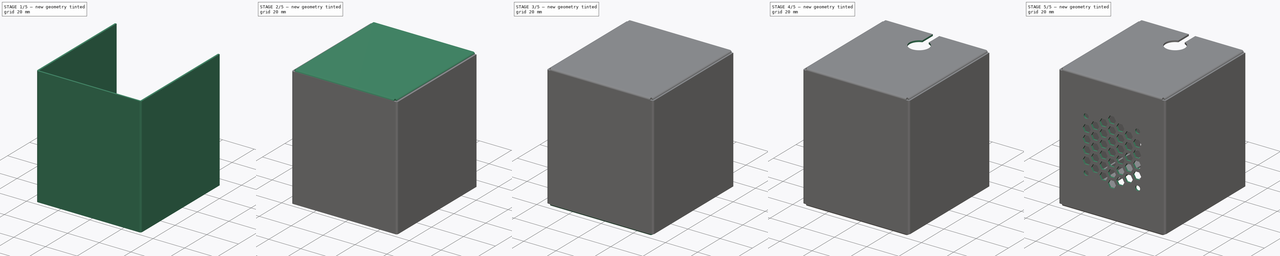
[diagram: build sequence overview — one tinted view per stage of 5, left to right]
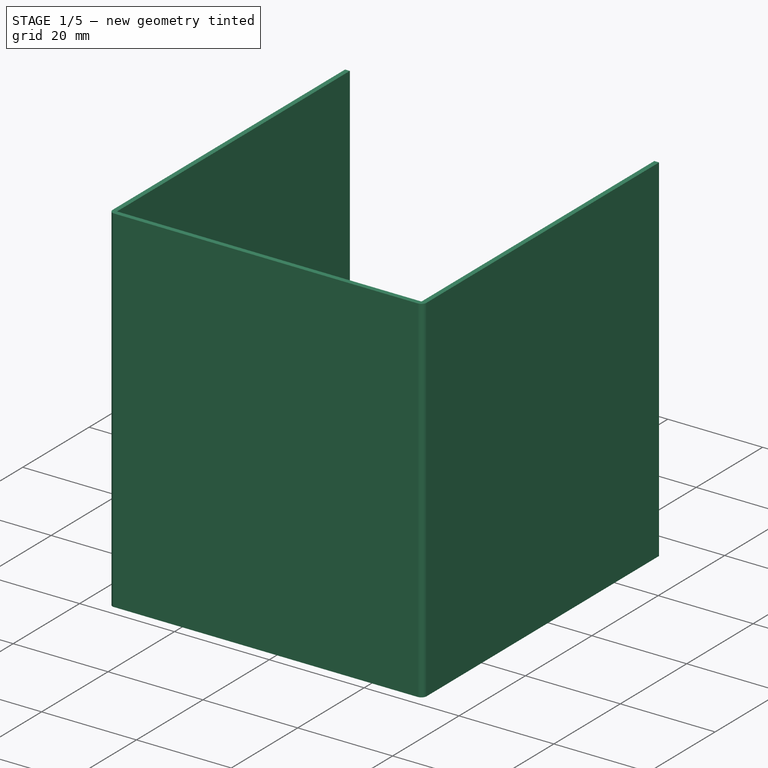
[diagram: stage 1 of 5 — iso view after this stage's code; geometry added in this stage tinted green]
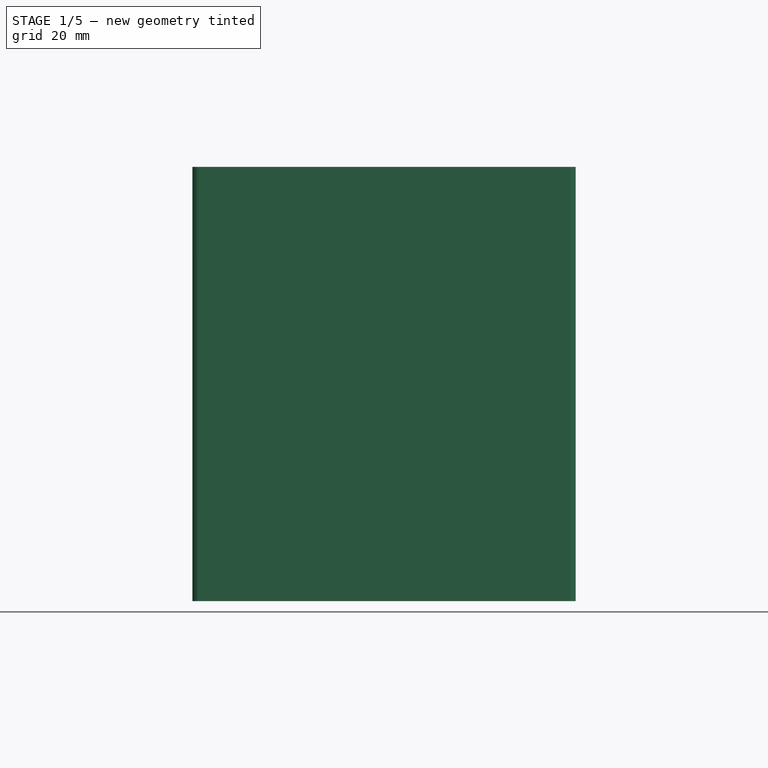
[diagram: stage 1 of 5 — front view after this stage's code; geometry added in this stage tinted green]
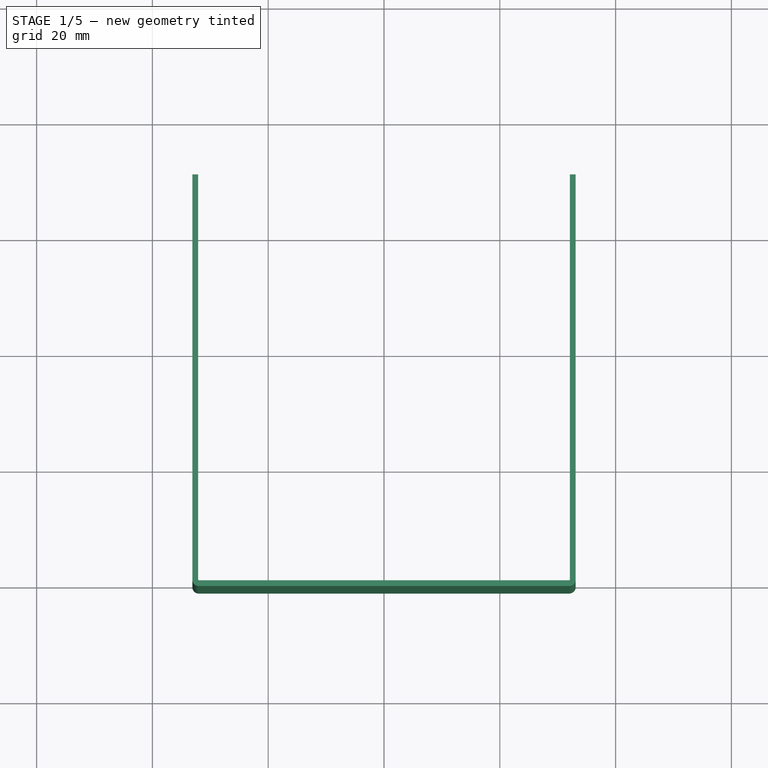
[diagram: stage 1 of 5 — top view after this stage's code; geometry added in this stage tinted green]
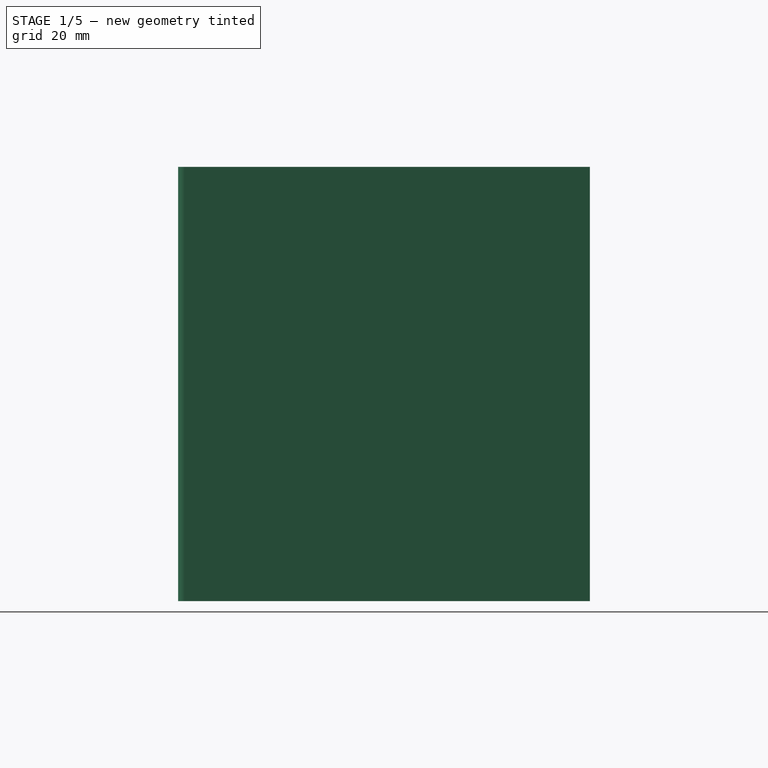
[diagram: stage 1 of 5 — right view after this stage's code; geometry added in this stage tinted green]
FCSTD DOCUMENT  (FreeCAD 0.19R24276 (Git))
Label: PX2_Hotend_housing
License: All rights reserved
LicenseURL: http://en.wikipedia.org/wiki/All_rights_reserved
objects: PartDesign::FeaturePython×8, Sketcher::SketchObject×7, PartDesign::Pocket×5, PartDesign::Pad×1, PartDesign::PolarPattern×1, PartDesign::Body×1
note: 29 computed .brp shape members not serialized (recipe doc carries the construction recipe); baked Part::Feature solids carry a one-line shape summary decoded from their .brp

FEATURE [Sketcher::SketchObject] Sketch
  FullyConstrained = true
  MapMode = 5
  Placement = pos=(0,0,0) rot=(1,0,0;1.5708rad)
  Support = -> [XZ_Plane]
  sketch-geometry (4):
    g0: LineSegment StartX=-32 StartY=37.5 StartZ=0 EndX=32 EndY=37.5 EndZ=0
    g1: LineSegment StartX=32 StartY=37.5 StartZ=0 EndX=32 EndY=-37.5 EndZ=0
    g2: LineSegment StartX=32 StartY=-37.5 StartZ=0 EndX=-32 EndY=-37.5 EndZ=0
    g3: LineSegment StartX=-32 StartY=-37.5 StartZ=0 EndX=-32 EndY=37.5 EndZ=0
  constraints (11):
    c: Coincident(g0,g1)
    c: Coincident(g1,g2)
    c: Coincident(g2,g3)
    c: Coincident(g3,g0)
    c: Horizontal(g0)
    c: Horizontal(g2)
    c: Vertical(g1)
    c: Vertical(g3)
    c: DistanceX(g0,g0) = 64
    c: DistanceY(g3,g3) = 75
    c: Symmetric(g0,g1,g-1)
FEATURE [PartDesign::Pad] Pad
  Direction = (1,1,1)
  Length = 1
  Length2 = 100
  Placement = pos=(0,0,0) rot=(1,0,0;1.5708rad)
  Profile = -> Sketch
  Type = 0
FEATURE [PartDesign::FeaturePython] Bend  label="right"  # WARN: FeaturePython — macro-defined, semantics opaque (R4)
  AutoMiter = true
  BaseFeature = -> Pad
  BendType = 0
  LengthList = [70]
  ReliefFactor = 0.7
  UseReliefFactor = false
  angle = 90
  baseObject = -> Pad [Edge7]
  bendAList = [90]
  extend1 = 0
  extend2 = 0
  gap1 = 0
  gap2 = 0
  invert = false
  kfactor = 0.5
  length = 70
  maxExtendDist = 5
  minGap = 0.1
  minReliefGap = 1
  miterangle1 = 0
  miterangle2 = 0
  offset = 0
  radius = 0.1
  reliefType = 0
  reliefd = 1
  reliefw = 0.8
  sketchflip = false
  sketchinvert = false
  unfold = false
FEATURE [PartDesign::FeaturePython] Bend001  label="left"  # WARN: FeaturePython — macro-defined, semantics opaque (R4)
  AutoMiter = true
  BaseFeature = -> Bend
  BendType = 0
  LengthList = [70]
  ReliefFactor = 0.7
  UseReliefFactor = false
  angle = 90
  baseObject = -> Bend [Edge25]
  bendAList = [90]
  extend1 = 0
  extend2 = 0
  gap1 = 0
  gap2 = 0
  invert = false
  kfactor = 0.5
  length = 70
  maxExtendDist = 5
  minGap = 0.1
  minReliefGap = 1
  miterangle1 = 0
  miterangle2 = 0
  offset = 0
  radius = 0.1
  reliefType = 0
  reliefd = 1
  reliefw = 0.8
  sketchflip = false
  sketchinvert = false
  unfold = false
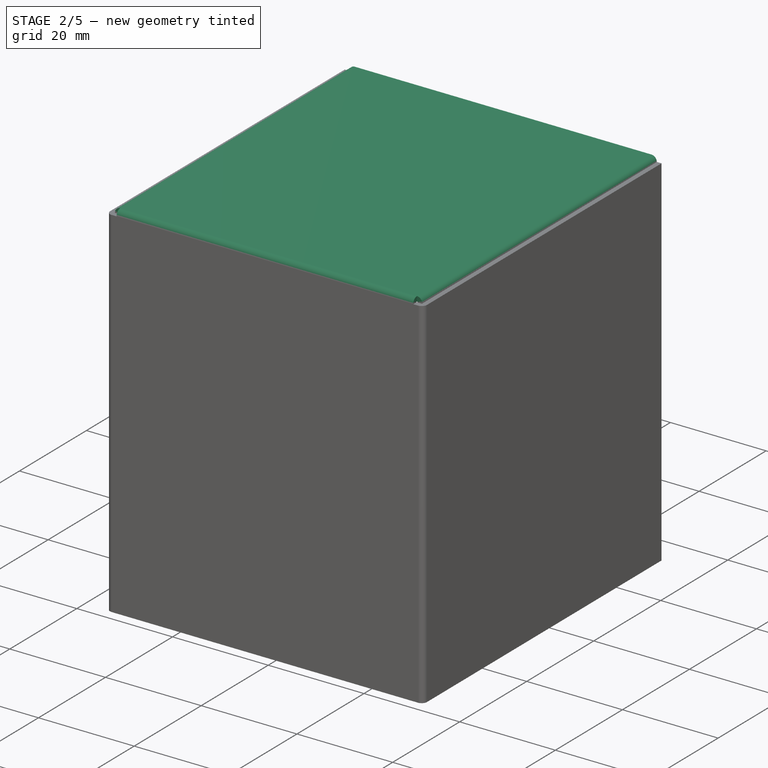
[diagram: stage 2 of 5 — iso view after this stage's code; geometry added in this stage tinted green]
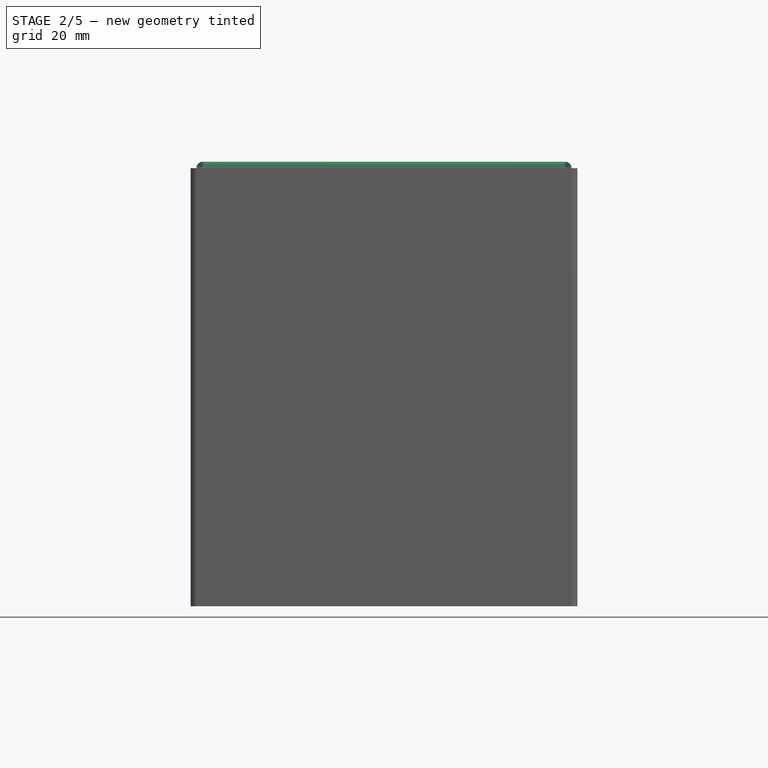
[diagram: stage 2 of 5 — front view after this stage's code; geometry added in this stage tinted green]
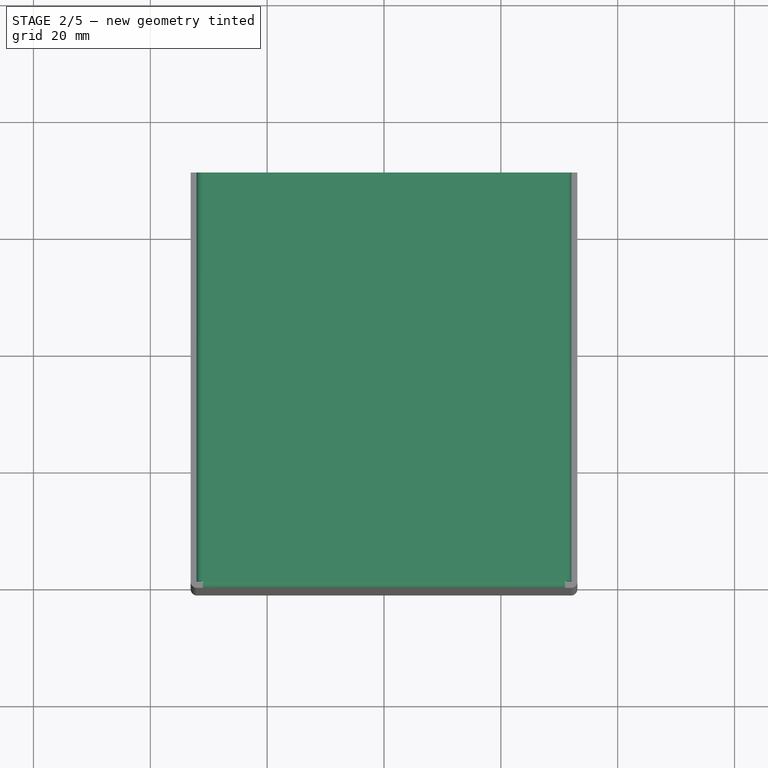
[diagram: stage 2 of 5 — top view after this stage's code; geometry added in this stage tinted green]
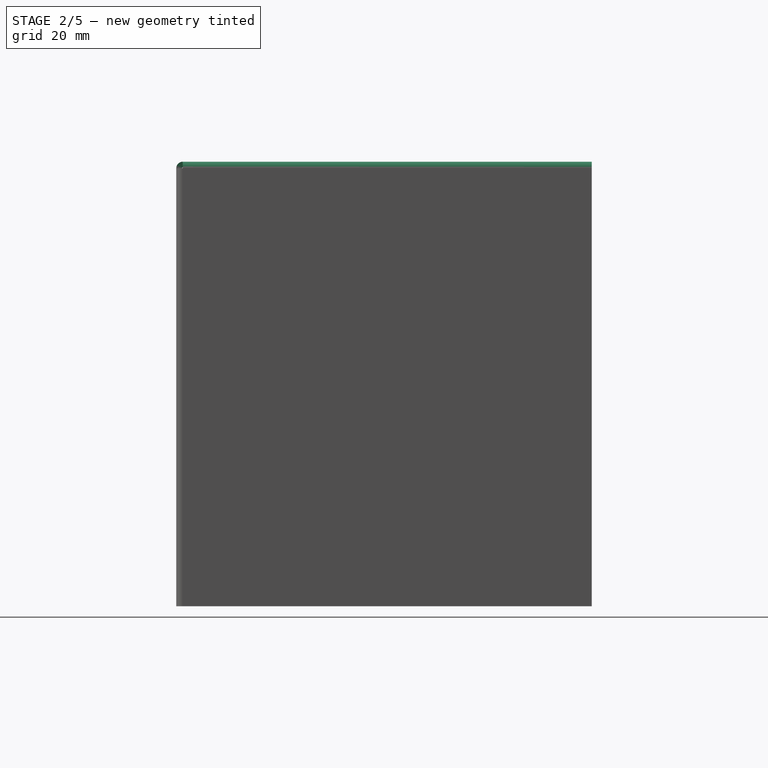
[diagram: stage 2 of 5 — right view after this stage's code; geometry added in this stage tinted green]
FEATURE [PartDesign::FeaturePython] Bend002  label="top"  # WARN: FeaturePython — macro-defined, semantics opaque (R4)
  AutoMiter = true
  BaseFeature = -> Bend001
  BendType = 0
  LengthList = [70]
  ReliefFactor = 0.7
  UseReliefFactor = false
  angle = 90
  baseObject = -> Bend001 [Edge24]
  bendAList = [90]
  extend1 = 0
  extend2 = 0
  gap1 = 1
  gap2 = 1
  invert = false
  kfactor = 0.5
  length = 70
  maxExtendDist = 5
  minGap = 0.1
  minReliefGap = 1
  miterangle1 = 0
  miterangle2 = 0
  offset = 0
  radius = 0.1
  reliefType = 0
  reliefd = 1
  reliefw = 0.8
  sketchflip = false
  sketchinvert = false
  unfold = false
FEATURE [PartDesign::FeaturePython] Bend003  label="top_flap_l"  # WARN: FeaturePython — macro-defined, semantics opaque (R4)
  AutoMiter = true
  BaseFeature = -> Bend002
  BendType = 0
  LengthList = [5]
  ReliefFactor = 0.7
  UseReliefFactor = false
  angle = 90
  baseObject = -> Bend002 [Edge3]
  bendAList = [90]
  extend1 = 0
  extend2 = 0
  gap1 = 0
  gap2 = 0
  invert = false
  kfactor = 0.5
  length = 5
  maxExtendDist = 5
  minGap = 0.1
  minReliefGap = 1
  miterangle1 = 0
  miterangle2 = 0
  offset = 0
  radius = 0.1
  reliefType = 0
  reliefd = 1
  reliefw = 0.8
  sketchflip = false
  sketchinvert = false
  unfold = false
FEATURE [PartDesign::FeaturePython] Bend004  label="top_flap_r"  # WARN: FeaturePython — macro-defined, semantics opaque (R4)
  AutoMiter = true
  BaseFeature = -> Bend003
  BendType = 0
  LengthList = [5]
  ReliefFactor = 0.7
  UseReliefFactor = false
  angle = 90
  baseObject = -> Bend003 [Edge43]
  bendAList = [90]
  extend1 = 0
  extend2 = 0
  gap1 = 0
  gap2 = 0
  invert = false
  kfactor = 0.5
  length = 5
  maxExtendDist = 5
  minGap = 0.1
  minReliefGap = 1
  miterangle1 = 0
  miterangle2 = 0
  offset = 0
  radius = 0.1
  reliefType = 0
  reliefd = 1
  reliefw = 0.8
  sketchflip = false
  sketchinvert = false
  unfold = false
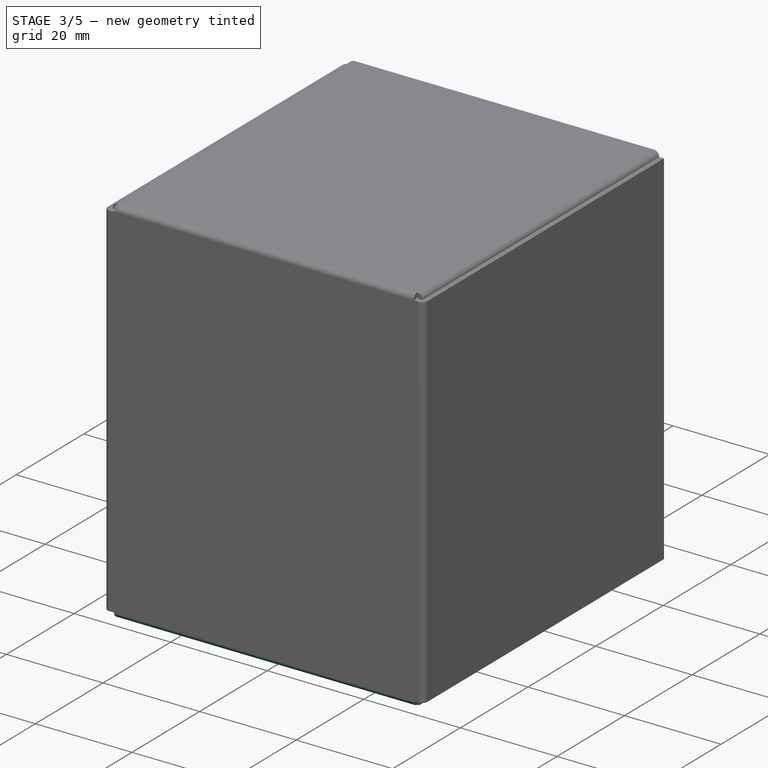
[diagram: stage 3 of 5 — iso view after this stage's code; geometry added in this stage tinted green]
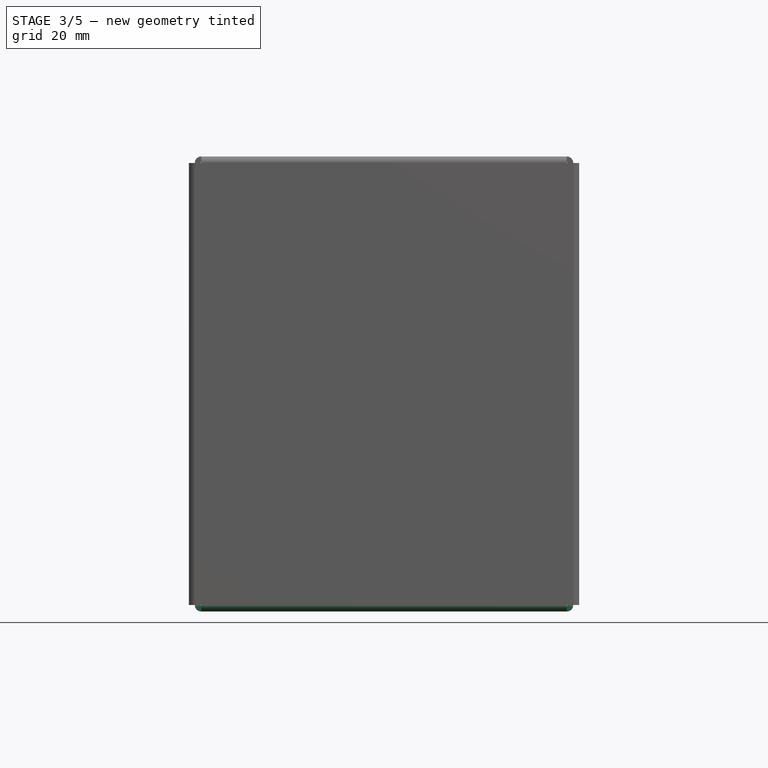
[diagram: stage 3 of 5 — front view after this stage's code; geometry added in this stage tinted green]
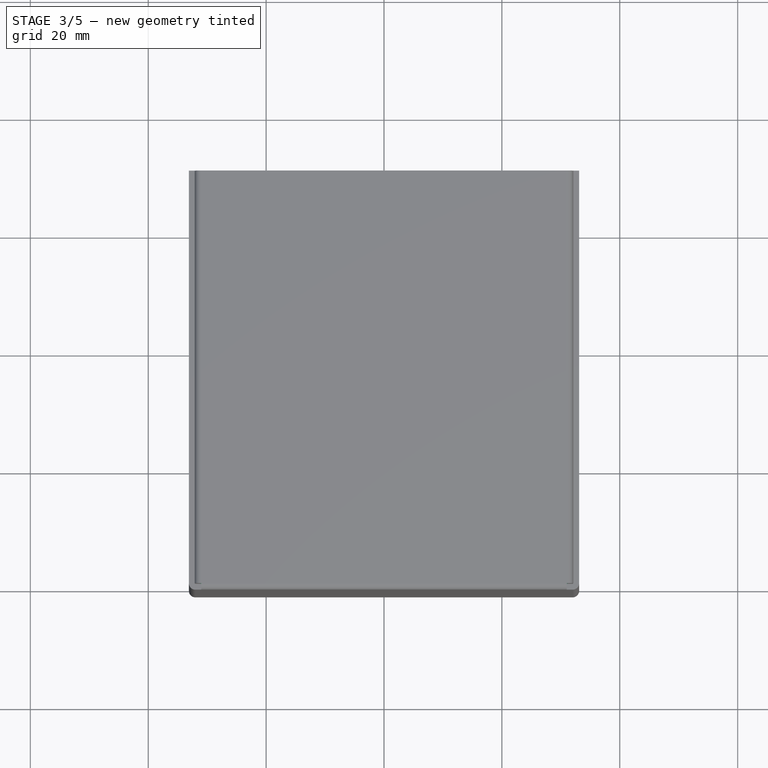
[diagram: stage 3 of 5 — top view after this stage's code; geometry added in this stage tinted green]
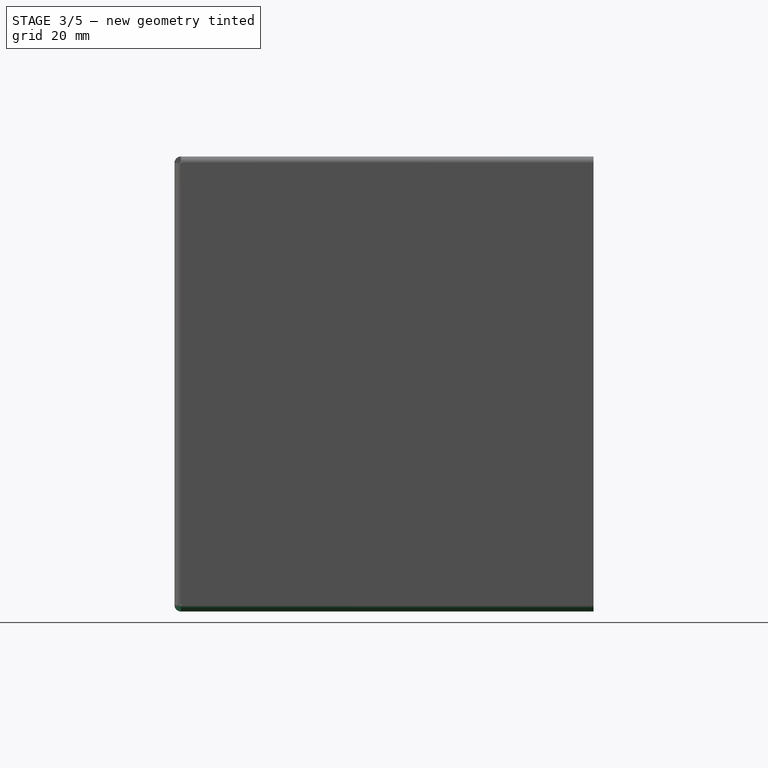
[diagram: stage 3 of 5 — right view after this stage's code; geometry added in this stage tinted green]
FEATURE [PartDesign::FeaturePython] Bend005  label="bottom"  # WARN: FeaturePython — macro-defined, semantics opaque (R4)
  AutoMiter = true
  BaseFeature = -> Bend004
  BendType = 0
  LengthList = [70]
  ReliefFactor = 0.7
  UseReliefFactor = false
  angle = 90
  baseObject = -> Bend004 [Edge70]
  bendAList = [90]
  extend1 = 0
  extend2 = 0
  gap1 = 1
  gap2 = 1
  invert = false
  kfactor = 0.5
  length = 70
  maxExtendDist = 5
  minGap = 0.1
  minReliefGap = 1
  miterangle1 = 0
  miterangle2 = 0
  offset = 0
  radius = 0.1
  reliefType = 0
  reliefd = 1
  reliefw = 0.8
  sketchflip = false
  sketchinvert = false
  unfold = false
FEATURE [PartDesign::FeaturePython] Bend006  label="bottom_flap_r"  # WARN: FeaturePython — macro-defined, semantics opaque (R4)
  AutoMiter = true
  BaseFeature = -> Bend005
  BendType = 0
  LengthList = [5]
  ReliefFactor = 0.7
  UseReliefFactor = false
  angle = 90
  baseObject = -> Bend005 [Edge3]
  bendAList = [90]
  extend1 = 0
  extend2 = 0
  gap1 = 0
  gap2 = 0
  invert = false
  kfactor = 0.5
  length = 5
  maxExtendDist = 5
  minGap = 0.1
  minReliefGap = 1
  miterangle1 = 0
  miterangle2 = 0
  offset = 0
  radius = 0.1
  reliefType = 0
  reliefd = 1
  reliefw = 0.8
  sketchflip = false
  sketchinvert = false
  unfold = false
FEATURE [PartDesign::FeaturePython] Bend007  # WARN: FeaturePython — macro-defined, semantics opaque (R4)
  AutoMiter = true
  BaseFeature = -> Bend006
  BendType = 0
  LengthList = [5]
  ReliefFactor = 0.7
  UseReliefFactor = false
  angle = 90
  baseObject = -> Bend006 [Edge49]
  bendAList = [90]
  extend1 = 0
  extend2 = 0
  gap1 = 0
  gap2 = 0
  invert = false
  kfactor = 0.5
  length = 5
  maxExtendDist = 5
  minGap = 0.1
  minReliefGap = 1
  miterangle1 = 0
  miterangle2 = 0
  offset = 0
  radius = 0.1
  reliefType = 0
  reliefd = 1
  reliefw = 0.8
  sketchflip = false
  sketchinvert = false
  unfold = false
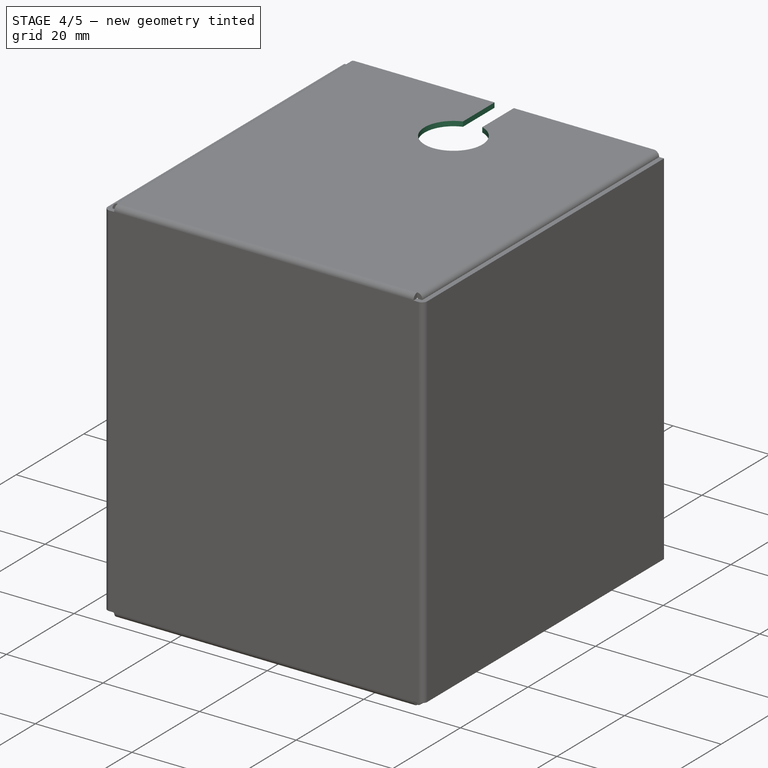
[diagram: stage 4 of 5 — iso view after this stage's code; geometry added in this stage tinted green]
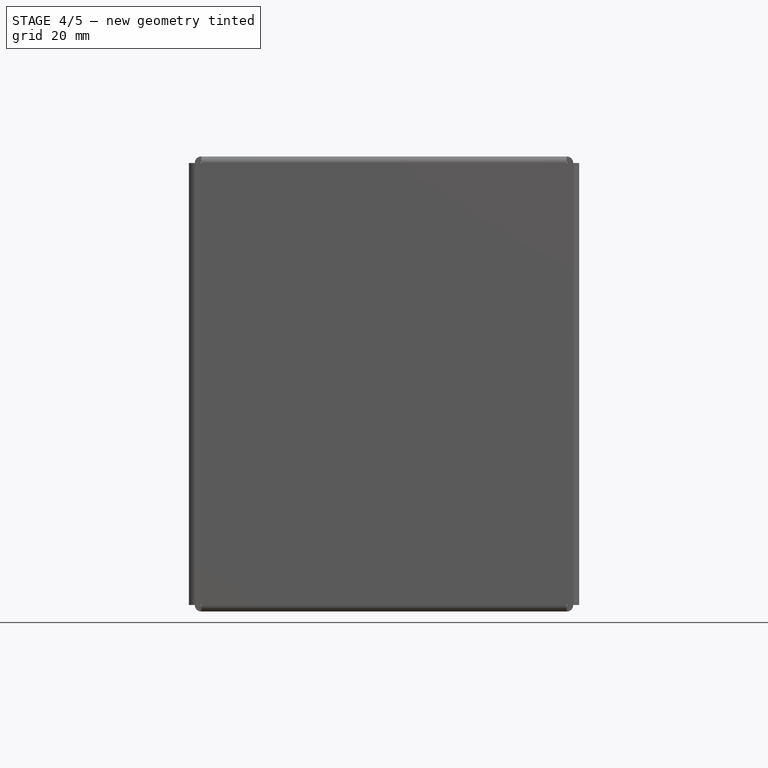
[diagram: stage 4 of 5 — front view after this stage's code; geometry added in this stage tinted green]
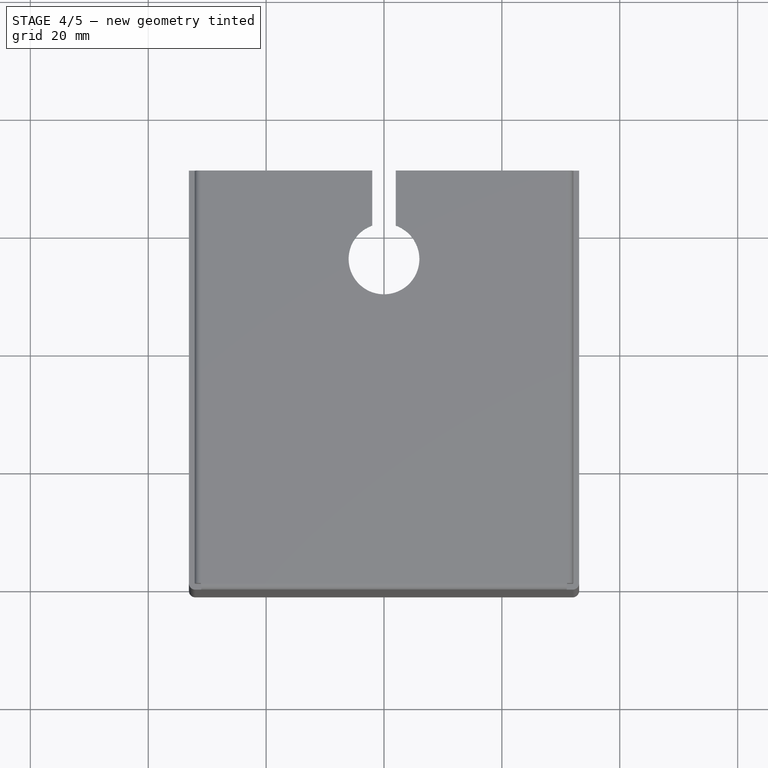
[diagram: stage 4 of 5 — top view after this stage's code; geometry added in this stage tinted green]
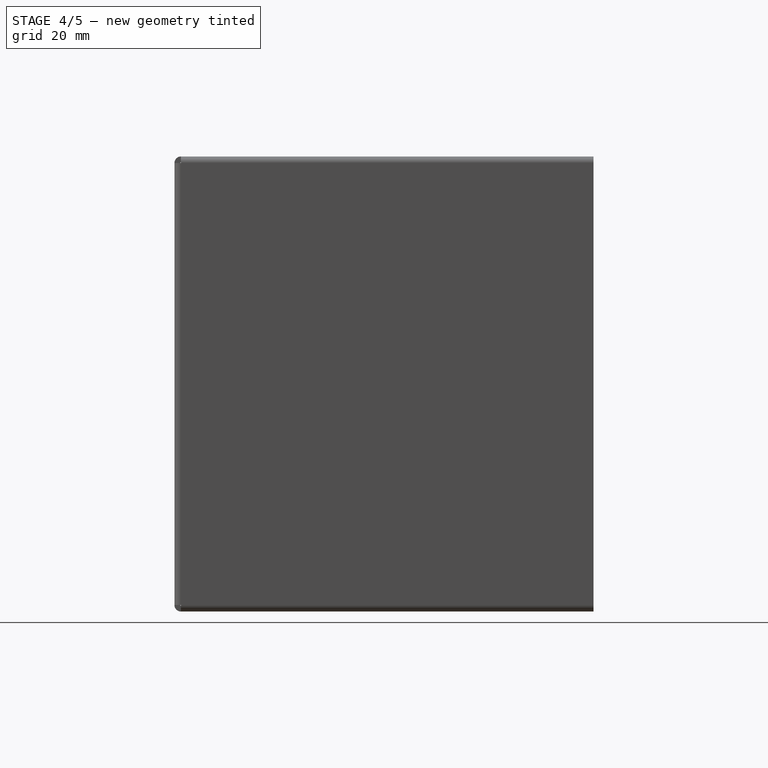
[diagram: stage 4 of 5 — right view after this stage's code; geometry added in this stage tinted green]
FEATURE [Sketcher::SketchObject] Sketch001
  ExternalGeometry = -> [Bend007]
  FullyConstrained = true
  MapMode = 5
  Placement = pos=(0,4.3e-15,-38.6) rot=(1,0,0;3.14159rad)
  Support = -> [Bend007]
  sketch-geometry (6):
    g0: LineSegment StartX=25 StartY=-40.1 StartZ=0 EndX=25 EndY=-70.1 EndZ=0
    g1: LineSegment StartX=25 StartY=-70.1 StartZ=0 EndX=-25 EndY=-70.1 EndZ=0
    g2: LineSegment StartX=-25 StartY=-70.1 StartZ=0 EndX=-25 EndY=-40.1 EndZ=0
    g3: LineSegment StartX=-20 StartY=-35.1 StartZ=0 EndX=20 EndY=-35.1 EndZ=0
    g4: ArcOfCircle CenterX=-20 CenterY=-40.1 CenterZ=0 NormalX=0 NormalY=0 NormalZ=1 AngleXU=0 Radius=5 StartAngle=1.5708 EndAngle=3.14159
    g5: ArcOfCircle CenterX=20 CenterY=-40.1 CenterZ=0 NormalX=0 NormalY=0 NormalZ=1 AngleXU=0 Radius=5 StartAngle=4e-16 EndAngle=1.5708
  constraints (16):
    c: Coincident(g0,g1)
    c: Coincident(g1,g2)
    c: Horizontal(g1)
    c: Vertical(g0)
    c: Vertical(g2)
    c: DistanceX(g1,g1) = 50
    c: Horizontal(g3)
    c: Tangent(g2,g4) = 1.5708
    c: Tangent(g3,g4) = 1.5708
    c: Tangent(g0,g5) = 1.5708
    c: Tangent(g3,g5) = 1.5708
    c: Equal(g4,g5)
    c: Diameter(g5) = 10
    c: PointOnObject(g1,g-3)
    c: DistanceY(g1,g3) = 35
    c: DistanceX(g1,g-1) = 25
FEATURE [PartDesign::Pocket] Pocket  label="bottom_pocket"
  BaseFeature = -> Bend007
  Length = 5
  Length2 = 100
  Profile = -> Sketch001
  Type = 0
FEATURE [Sketcher::SketchObject] Sketch002
  ExternalGeometry = -> [Pocket]
  FullyConstrained = true
  MapMode = 5
  Placement = pos=(0,-1.29e-14,38.6) rot=(0,0,1;0rad)
  Support = -> [Pocket]
  sketch-geometry (1):
    g0: Circle CenterX=0 CenterY=55.1 CenterZ=0 NormalX=0 NormalY=0 NormalZ=1 AngleXU=0 Radius=6
  constraints (3):
    c: PointOnObject(g0,g-2)
    c: DistanceY(g0,g-3) = 15
    c: Diameter(g0) = 12
FEATURE [PartDesign::Pocket] Pocket001  label="top_hole"
  BaseFeature = -> Pocket
  Length = 5
  Length2 = 100
  Profile = -> Sketch002
  Type = 0
FEATURE [Sketcher::SketchObject] Sketch003
  ExternalGeometry = -> [Pocket001]
  FullyConstrained = true
  MapMode = 5
  Placement = pos=(0,-1.29e-14,38.6) rot=(0,0,1;0rad)
  Support = -> [Pocket001]
  sketch-geometry (4):
    g0: LineSegment StartX=-2 StartY=70.1 StartZ=0 EndX=2 EndY=70.1 EndZ=0
    g1: LineSegment StartX=2 StartY=70.1 StartZ=0 EndX=2 EndY=60.7569 EndZ=0
    g2: LineSegment StartX=2 StartY=60.7569 StartZ=0 EndX=-2 EndY=60.7569 EndZ=0
    g3: LineSegment StartX=-2 StartY=60.7569 StartZ=0 EndX=-2 EndY=70.1 EndZ=0
  constraints (12):
    c: Coincident(g0,g1)
    c: Coincident(g1,g2)
    c: Coincident(g2,g3)
    c: Coincident(g3,g0)
    c: Horizontal(g0)
    c: Horizontal(g2)
    c: Vertical(g1)
    c: Vertical(g3)
    c: DistanceX(g0,g0) = 4
    c: PointOnObject(g0,g-4)
    c: PointOnObject(g2,g-3)
    c: PointOnObject(g1,g-3)
FEATURE [PartDesign::Pocket] Pocket002  label="top_pocket"
  BaseFeature = -> Pocket001
  Length = 5
  Length2 = 100
  Profile = -> Sketch003
  Type = 0
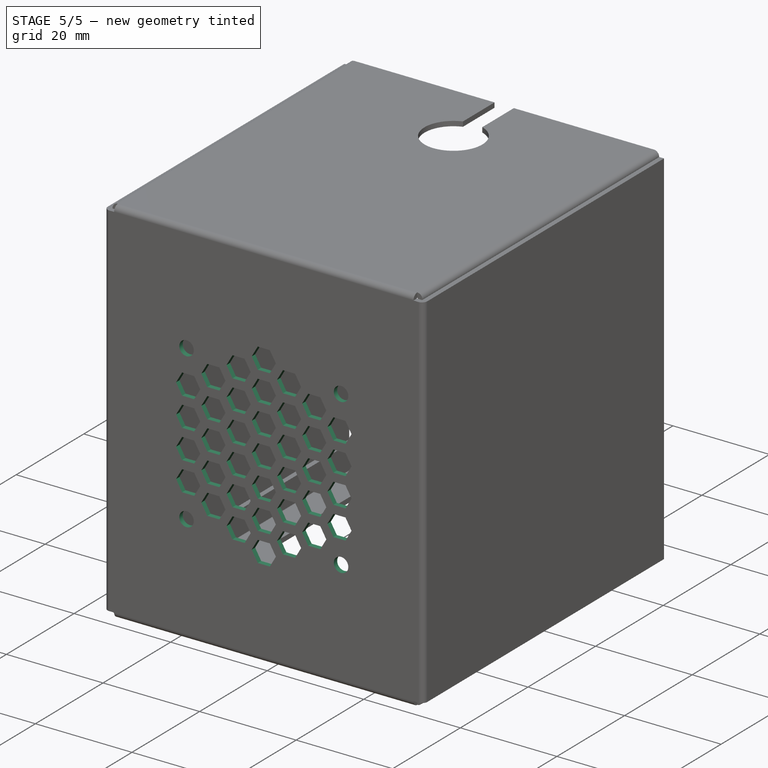
[diagram: stage 5 of 5 — iso view after this stage's code; geometry added in this stage tinted green]
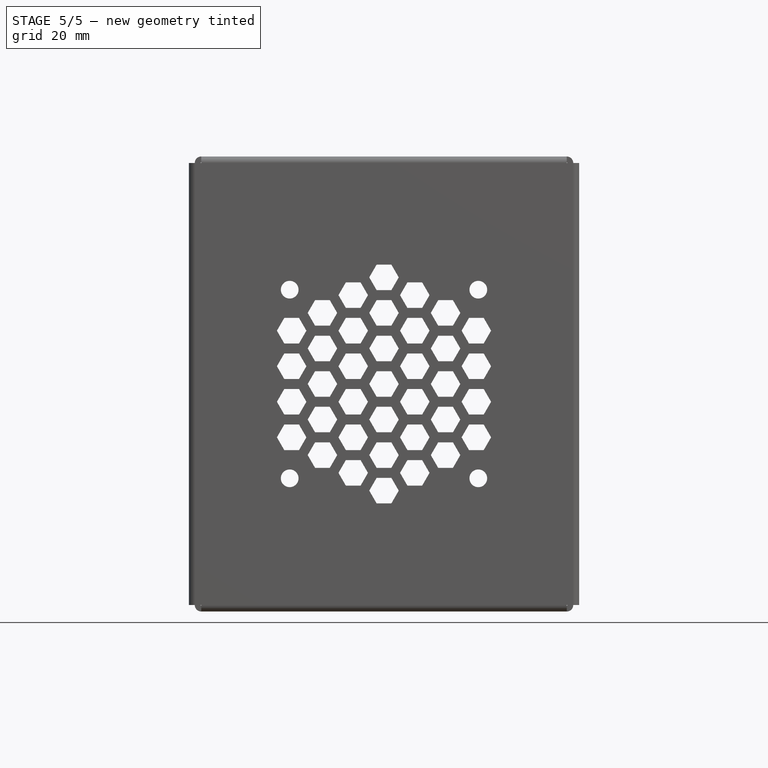
[diagram: stage 5 of 5 — front view after this stage's code; geometry added in this stage tinted green]
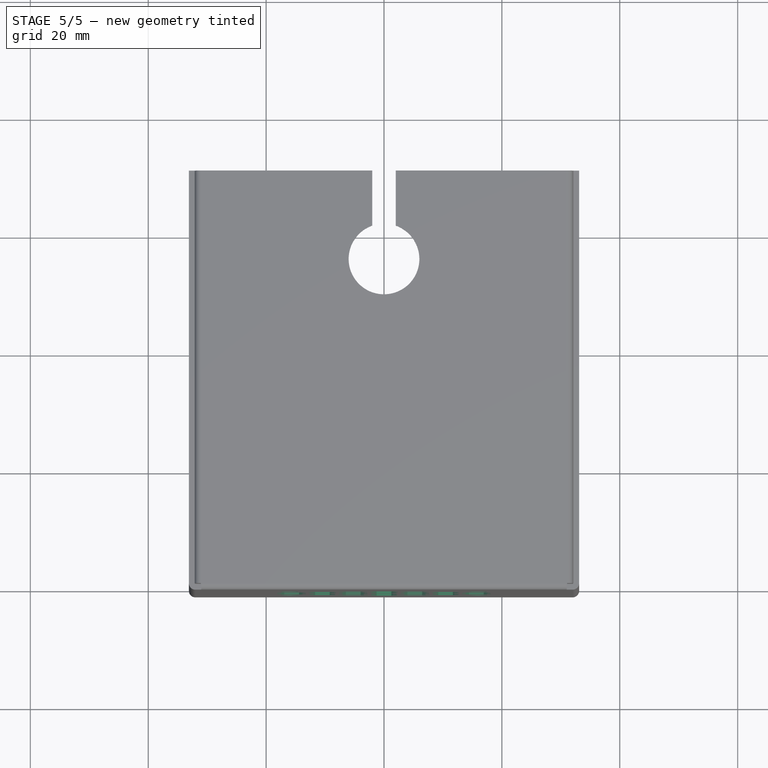
[diagram: stage 5 of 5 — top view after this stage's code; geometry added in this stage tinted green]
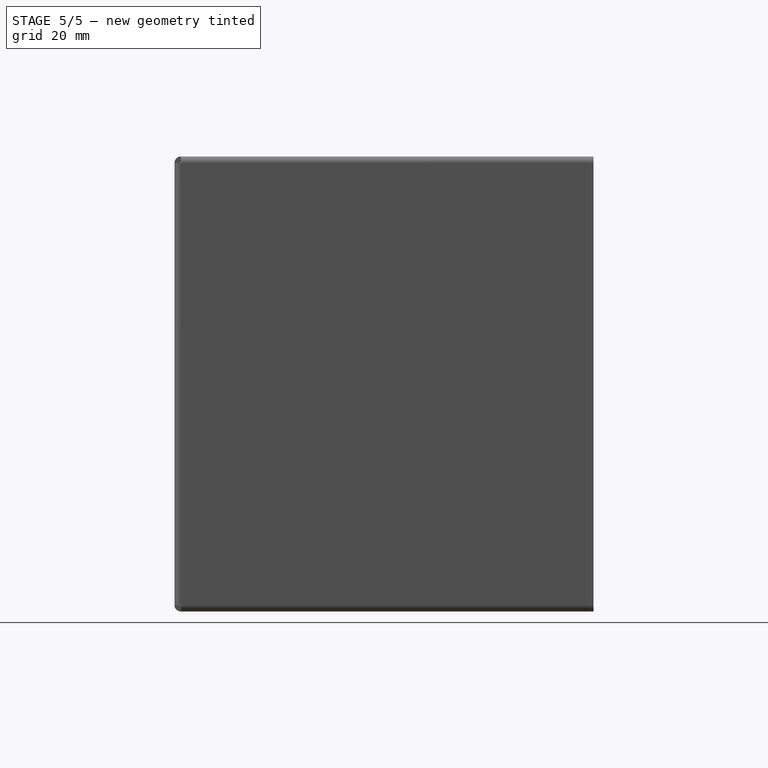
[diagram: stage 5 of 5 — right view after this stage's code; geometry added in this stage tinted green]
FEATURE [Sketcher::SketchObject] Sketch004  label="logo_skt"
  FullyConstrained = false
  MapMode = 5
  Placement = pos=(0,-1,-2e-16) rot=(1,0,0;1.5708rad)
  Support = -> [Pocket002]
  sketch-geometry (24):
    g0: LineSegment StartX=-16.425 StartY=14.8618 StartZ=0 EndX=16.425 EndY=14.8618 EndZ=0
    g1: LineSegment StartX=16.425 StartY=14.8618 StartZ=0 EndX=16.425 EndY=-14.8618 EndZ=0
    g2: LineSegment StartX=16.425 StartY=-14.8618 StartZ=0 EndX=-16.425 EndY=-14.8618 EndZ=0
    g3: LineSegment StartX=-16.425 StartY=-14.8618 StartZ=0 EndX=-16.425 EndY=14.8618 EndZ=0
    g4: LineSegment StartX=-16.425 StartY=14.8618 StartZ=0 EndX=-11.425 EndY=14.8618 EndZ=0
    g5: LineSegment StartX=-11.425 StartY=14.8618 StartZ=0 EndX=-0.952432 EndY=3.68471 EndZ=0
    g6: LineSegment StartX=-0.952432 StartY=3.68471 StartZ=0 EndX=-5.95243 EndY=3.68471 EndZ=0
    g7: LineSegment StartX=-5.95243 StartY=3.68471 StartZ=0 EndX=-16.425 EndY=14.8618 EndZ=0
    g8: LineSegment StartX=-16.425 StartY=-14.8618 StartZ=0 EndX=11.425 EndY=14.8618 EndZ=0
    g9: LineSegment StartX=11.425 StartY=14.8618 StartZ=0 EndX=16.425 EndY=14.8618 EndZ=0
    g10: LineSegment StartX=16.425 StartY=14.8618 StartZ=0 EndX=-11.425 EndY=-14.8618 EndZ=0
    g11: LineSegment StartX=-11.425 StartY=-14.8618 StartZ=0 EndX=-16.425 EndY=-14.8618 EndZ=0
    g12: LineSegment StartX=0.874498 StartY=-3.60153 StartZ=0 EndX=5.8745 EndY=-3.60153 EndZ=0
    g13: LineSegment StartX=5.8745 StartY=-3.60153 StartZ=0 EndX=16.425 EndY=-14.8618 EndZ=0
    g14: LineSegment StartX=16.425 StartY=-14.8618 StartZ=0 EndX=11.425 EndY=-14.8618 EndZ=0
    g15: LineSegment StartX=11.425 StartY=-14.8618 StartZ=0 EndX=0.874498 EndY=-3.60153 EndZ=0
    g16: LineSegment StartX=-16.425 StartY=14.8618 StartZ=0 EndX=11.425 EndY=-14.8618 EndZ=0
    g17: LineSegment StartX=-20 StartY=20 StartZ=0 EndX=20 EndY=20 EndZ=0
    g18: LineSegment StartX=20 StartY=20 StartZ=0 EndX=20 EndY=-20 EndZ=0
    g19: LineSegment StartX=20 StartY=-20 StartZ=0 EndX=-20 EndY=-20 EndZ=0
    g20: LineSegment StartX=-20 StartY=-20 StartZ=0 EndX=-20 EndY=20 EndZ=0
    g21: Circle CenterX=14.3436 CenterY=17.4972 CenterZ=0 NormalX=0 NormalY=0 NormalZ=1 AngleXU=0 Radius=1.5
    g22: Circle CenterX=-14.3436 CenterY=-17.4972 CenterZ=0 NormalX=0 NormalY=0 NormalZ=1 AngleXU=0 Radius=1.5
    g23: LineSegment StartX=14.3436 StartY=17.4972 StartZ=0 EndX=-14.3436 EndY=-17.4972 EndZ=0
  constraints (58):
    c: Coincident(g0,g1)
    c: Coincident(g1,g2)
    c: Coincident(g2,g3)
    c: Coincident(g3,g0)
    c: Horizontal(g0)
    c: Horizontal(g2)
    c: Symmetric(g0,g1,g-1)
    c: Coincident(g4,g5)
    c: Coincident(g5,g6)
    c: Horizontal(g6)
    c: Coincident(g6,g7)
    c: Coincident(g7,g4)
    c: Coincident(g8,g9)
    c: Coincident(g9,g10)
    c: Coincident(g10,g11)
    c: Coincident(g11,g8)
    c: Horizontal(g12)
    c: Coincident(g12,g13)
    c: Coincident(g13,g14)
    c: Horizontal(g14)
    c: Coincident(g14,g15)
    c: Coincident(g15,g12)
    c: Parallel(g15,g13)
    c: Parallel(g8,g10)
    c: Parallel(g5,g7)
    c: Horizontal(g4)
    c: Horizontal(g9)
    c: Horizontal(g11)
    c: Equal(g4,g9)
    c: Equal(g9,g12)
    c: Parallel(g5,g15)
    c: Coincident(g4,g0)
    c: Coincident(g9,g0)
    c: Coincident(g8,g2)
    c: Coincident(g13,g1)
    c: Coincident(g16,g4)
    c: Coincident(g16,g14)
    c: PointOnObject(g6,g16)
    c: Coincident(g17,g18)
    c: Coincident(g18,g19)
    c: Coincident(g19,g20)
    c: Coincident(g20,g17)
    c: Horizontal(g17)
    c: Horizontal(g19)
    c: Vertical(g18)
    c: Vertical(g20)
    c: Equal(g18,g17)
    c: DistanceX(g17,g17) = 40
    c: Symmetric(g17,g18,g-1)
    c: DistanceX(g4,g4) = 5
    c: Vertical(g1)
    c: Vertical(g3)
    c: Coincident(g23,g21)
    c: Coincident(g23,g22)
    c: Distance(g21,g22) = 45.25
    c: Equal(g22,g21)
    c: Diameter(g22) = 3
    c: Symmetric(g21,g22,g-1)
FEATURE [Sketcher::SketchObject] Sketch005  label="fan_air_holes_skt"
  FullyConstrained = true
  MapMode = 5
  Placement = pos=(0,-1,-2e-16) rot=(1,0,0;1.5708rad)
  Support = -> [Pocket002]
  sketch-geometry (56):
    g0: LineSegment StartX=2.5 StartY=6e-16 StartZ=0 EndX=1.25 EndY=2.16506 EndZ=0
    g1: LineSegment StartX=1.25 StartY=2.16506 StartZ=0 EndX=-1.25 EndY=2.16506 EndZ=0
    g2: LineSegment StartX=-1.25 StartY=2.16506 StartZ=0 EndX=-2.5 EndY=4e-16 EndZ=0
    g3: LineSegment StartX=-2.5 StartY=4e-16 StartZ=0 EndX=-1.25 EndY=-2.16506 EndZ=0
    g4: LineSegment StartX=-1.25 StartY=-2.16506 StartZ=0 EndX=1.25 EndY=-2.16506 EndZ=0
    g5: LineSegment StartX=1.25 StartY=-2.16506 StartZ=0 EndX=2.5 EndY=4e-16 EndZ=0
    g6: Circle CenterX=0 CenterY=0 CenterZ=0 NormalX=0 NormalY=0 NormalZ=1 AngleXU=0 Radius=2.5
    g7: LineSegment StartX=1.25 StartY=3.86506 StartZ=0 EndX=2.5 EndY=6.03013 EndZ=0
    g8: LineSegment StartX=2.5 StartY=6.03013 StartZ=0 EndX=1.25 EndY=8.19519 EndZ=0
    g9: LineSegment StartX=1.25 StartY=8.19519 StartZ=0 EndX=-1.25 EndY=8.19519 EndZ=0
    g10: LineSegment StartX=-1.25 StartY=8.19519 StartZ=0 EndX=-2.5 EndY=6.03013 EndZ=0
    g11: LineSegment StartX=-2.5 StartY=6.03013 StartZ=0 EndX=-1.25 EndY=3.86506 EndZ=0
    g12: LineSegment StartX=-1.25 StartY=3.86506 StartZ=0 EndX=1.25 EndY=3.86506 EndZ=0
    g13: Circle CenterX=0 CenterY=6.03013 CenterZ=0 NormalX=0 NormalY=0 NormalZ=1 AngleXU=0 Radius=2.5
    g14: LineSegment StartX=1.25 StartY=9.89519 StartZ=0 EndX=2.5 EndY=12.0603 EndZ=0
    g15: LineSegment StartX=2.5 StartY=12.0603 StartZ=0 EndX=1.25 EndY=14.2253 EndZ=0
    g16: LineSegment StartX=1.25 StartY=14.2253 StartZ=0 EndX=-1.25 EndY=14.2253 EndZ=0
    g17: LineSegment StartX=-1.25 StartY=14.2253 StartZ=0 EndX=-2.5 EndY=12.0603 EndZ=0
    g18: LineSegment StartX=-2.5 StartY=12.0603 StartZ=0 EndX=-1.25 EndY=9.89519 EndZ=0
    g19: LineSegment StartX=-1.25 StartY=9.89519 StartZ=0 EndX=1.25 EndY=9.89519 EndZ=0
    g20: Circle CenterX=0 CenterY=12.0603 CenterZ=0 NormalX=0 NormalY=0 NormalZ=1 AngleXU=0 Radius=2.5
    g21: LineSegment StartX=1.25 StartY=15.9253 StartZ=0 EndX=2.5 EndY=18.0904 EndZ=0
    g22: LineSegment StartX=2.5 StartY=18.0904 StartZ=0 EndX=1.25 EndY=20.2554 EndZ=0
    g23: LineSegment StartX=1.25 StartY=20.2554 StartZ=0 EndX=-1.25 EndY=20.2554 EndZ=0
    g24: LineSegment StartX=-1.25 StartY=20.2554 StartZ=0 EndX=-2.5 EndY=18.0904 EndZ=0
    g25: LineSegment StartX=-2.5 StartY=18.0904 StartZ=0 EndX=-1.25 EndY=15.9253 EndZ=0
    g26: LineSegment StartX=-1.25 StartY=15.9253 StartZ=0 EndX=1.25 EndY=15.9253 EndZ=0
    g27: Circle CenterX=0 CenterY=18.0904 CenterZ=0 NormalX=0 NormalY=0 NormalZ=1 AngleXU=0 Radius=2.5
    g28: LineSegment StartX=-3.97224 StartY=12.9103 StartZ=0 EndX=-2.72224 EndY=15.0753 EndZ=0
    g29: LineSegment StartX=-2.72224 StartY=15.0753 StartZ=0 EndX=-3.97224 EndY=17.2404 EndZ=0
    g30: LineSegment StartX=-3.97224 StartY=17.2404 StartZ=0 EndX=-6.47224 EndY=17.2404 EndZ=0
    g31: LineSegment StartX=-6.47224 StartY=17.2404 StartZ=0 EndX=-7.72224 EndY=15.0753 EndZ=0
    g32: LineSegment StartX=-7.72224 StartY=15.0753 StartZ=0 EndX=-6.47224 EndY=12.9103 EndZ=0
    g33: LineSegment StartX=-6.47224 StartY=12.9103 StartZ=0 EndX=-3.97224 EndY=12.9103 EndZ=0
    g34: Circle CenterX=-5.22224 CenterY=15.0753 CenterZ=0 NormalX=0 NormalY=0 NormalZ=1 AngleXU=0 Radius=2.5
    g35: LineSegment StartX=-9.19449 StartY=9.89519 StartZ=0 EndX=-7.94449 EndY=12.0603 EndZ=0
    g36: LineSegment StartX=-7.94449 StartY=12.0603 StartZ=0 EndX=-9.19449 EndY=14.2253 EndZ=0
    g37: LineSegment StartX=-9.19449 StartY=14.2253 StartZ=0 EndX=-11.6945 EndY=14.2253 EndZ=0
    g38: LineSegment StartX=-11.6945 StartY=14.2253 StartZ=0 EndX=-12.9445 EndY=12.0603 EndZ=0
    g39: LineSegment StartX=-12.9445 StartY=12.0603 StartZ=0 EndX=-11.6945 EndY=9.89519 EndZ=0
    g40: LineSegment StartX=-11.6945 StartY=9.89519 StartZ=0 EndX=-9.19449 EndY=9.89519 EndZ=0
    g41: Circle CenterX=-10.4445 CenterY=12.0603 CenterZ=0 NormalX=0 NormalY=0 NormalZ=1 AngleXU=0 Radius=2.5
    g42: LineSegment StartX=-3.97224 StartY=6.88013 StartZ=0 EndX=-2.72224 EndY=9.04519 EndZ=0
    g43: LineSegment StartX=-2.72224 StartY=9.04519 StartZ=0 EndX=-3.97224 EndY=11.2103 EndZ=0
    g44: LineSegment StartX=-3.97224 StartY=11.2103 StartZ=0 EndX=-6.47224 EndY=11.2103 EndZ=0
    g45: LineSegment StartX=-6.47224 StartY=11.2103 StartZ=0 EndX=-7.72224 EndY=9.04519 EndZ=0
    g46: LineSegment StartX=-7.72224 StartY=9.04519 StartZ=0 EndX=-6.47224 EndY=6.88013 EndZ=0
    g47: LineSegment StartX=-6.47224 StartY=6.88013 StartZ=0 EndX=-3.97224 EndY=6.88013 EndZ=0
    g48: Circle CenterX=-5.22224 CenterY=9.04519 CenterZ=0 NormalX=0 NormalY=0 NormalZ=1 AngleXU=0 Radius=2.5
    g49: LineSegment StartX=-10.4445 StartY=12.0603 StartZ=0 EndX=0 EndY=18.0904 EndZ=0
    g50: LineSegment StartX=-10.4445 StartY=12.0603 StartZ=0 EndX=0 EndY=6.03013 EndZ=0
    g51: LineSegment StartX=0 StartY=18.0904 StartZ=0 EndX=0 EndY=6.03013 EndZ=0
    g52: LineSegment StartX=-5.22224 StartY=15.0753 StartZ=0 EndX=0 EndY=12.0603 EndZ=0
    g53: LineSegment StartX=-5.22224 StartY=15.0753 StartZ=0 EndX=-5.22224 EndY=9.04519 EndZ=0
    g54: LineSegment StartX=-5.22224 StartY=9.04519 StartZ=0 EndX=0 EndY=12.0603 EndZ=0
    g55: LineSegment StartX=0 StartY=6.03013 StartZ=0 EndX=0 EndY=0 EndZ=0
  constraints (132):
    c: Coincident(g0,g1)
    c: Coincident(g1,g2)
    c: Coincident(g2,g3)
    c: Coincident(g3,g4)
    c: Coincident(g4,g5)
    c: Coincident(g5,g0)
    c: Equal(g0, g1-g5) x5
    c: PointOnObject(g0,g6)
    c: PointOnObject(g1,g6)
    c: PointOnObject(g2,g6)
    c: PointOnObject(g3,g6)
    c: PointOnObject(g4,g6)
    c: PointOnObject(g5,g6)
    c: Coincident(g6,g-1)
    c: Diameter(g6) = 5
    c: Coincident(g7,g8)
    c: Coincident(g8,g9)
    c: Coincident(g9,g10)
    c: Coincident(g10,g11)
    c: Coincident(g11,g12)
    c: Coincident(g12,g7)
    c: Equal(g7, g8-g12) x5
    c: PointOnObject(g7,g13)
    c: PointOnObject(g8,g13)
    c: PointOnObject(g9,g13)
    c: PointOnObject(g10,g13)
    c: PointOnObject(g11,g13)
    c: PointOnObject(g12,g13)
    c: PointOnObject(g13,g-2)
    c: Coincident(g14,g15)
    c: Coincident(g15,g16)
    c: Coincident(g16,g17)
    c: Coincident(g17,g18)
    c: Coincident(g18,g19)
    c: Coincident(g19,g14)
    c: Equal(g14, g15-g19) x5
    c: PointOnObject(g14,g20)
    c: PointOnObject(g15,g20)
    c: PointOnObject(g16,g20)
    c: PointOnObject(g17,g20)
    c: PointOnObject(g18,g20)
    c: PointOnObject(g19,g20)
    c: Coincident(g21,g22)
    c: Coincident(g22,g23)
    c: Coincident(g23,g24)
    c: Coincident(g24,g25)
    c: Coincident(g25,g26)
    c: Coincident(g26,g21)
    c: Equal(g21, g22-g26) x5
    c: PointOnObject(g21,g27)
    c: PointOnObject(g22,g27)
    c: PointOnObject(g23,g27)
    c: PointOnObject(g24,g27)
    c: PointOnObject(g25,g27)
    c: PointOnObject(g26,g27)
    c: Coincident(g28,g29)
    c: Coincident(g29,g30)
    c: Coincident(g30,g31)
    c: Coincident(g31,g32)
    c: Coincident(g32,g33)
    c: Coincident(g33,g28)
    c: Equal(g28, g29-g33) x5
    c: PointOnObject(g28,g34)
    c: PointOnObject(g29,g34)
    c: PointOnObject(g30,g34)
    c: PointOnObject(g31,g34)
    c: PointOnObject(g32,g34)
    c: PointOnObject(g33,g34)
    c: Coincident(g35,g36)
    c: Coincident(g36,g37)
    c: Coincident(g37,g38)
    c: Coincident(g38,g39)
    c: Coincident(g39,g40)
    c: Coincident(g40,g35)
    c: Equal(g35, g36-g40) x5
    c: PointOnObject(g35,g41)
    c: PointOnObject(g36,g41)
    c: PointOnObject(g37,g41)
    c: PointOnObject(g38,g41)
    c: PointOnObject(g39,g41)
    c: PointOnObject(g40,g41)
    c: Coincident(g42,g43)
    c: Coincident(g43,g44)
    c: Coincident(g44,g45)
    c: Coincident(g45,g46)
    c: Coincident(g46,g47)
    c: Coincident(g47,g42)
    c: Equal(g42, g43-g47) x5
    c: PointOnObject(g42,g48)
    c: PointOnObject(g43,g48)
    c: PointOnObject(g44,g48)
    c: PointOnObject(g45,g48)
    c: PointOnObject(g46,g48)
    c: PointOnObject(g47,g48)
    c: Horizontal(g33)
    c: Horizontal(g12)
    c: Horizontal(g19)
    c: Horizontal(g26)
    c: Horizontal(g40)
    c: Equal(g13,g20)
    c: Equal(g20,g27)
    c: Equal(g27,g34)
    c: Equal(g34,g41)
    c: Equal(g41,g6)
    c: Equal(g6,g48)
    c: PointOnObject(g20,g-2)
    c: PointOnObject(g27,g-2)
    c: Coincident(g49,g41)
    c: Coincident(g49,g27)
    c: Coincident(g50,g41)
    c: Coincident(g50,g13)
    c: Coincident(g51,g27)
    c: Coincident(g51,g13)
    c: Equal(g49,g50)
    c: Equal(g50,g51)
    c: PointOnObject(g34,g49)
    c: PointOnObject(g48,g50)
    c: Coincident(g52,g34)
    c: Coincident(g52,g20)
    c: Coincident(g53,g34)
    c: Coincident(g53,g48)
    c: Vertical(g53)
    c: Coincident(g54,g48)
    c: Coincident(g54,g20)
    c: Equal(g53,g52)
    c: Equal(g52,g54)
    c: Coincident(g55,g13)
    c: Coincident(g55,g-1)
    c: Equal(g55,g54)
    c: DistanceY(g0,g7) = 1.7
    c: Horizontal(g4)
    c: Horizontal(g47)
FEATURE [Sketcher::SketchObject] Sketch006  label="fan_screws_skt"
  FullyConstrained = true
  MapMode = 5
  Placement = pos=(0,-1,-2e-16) rot=(1,0,0;1.5708rad)
  Support = -> [Pocket002]
  sketch-geometry (8):
    g0: LineSegment StartX=-16 StartY=16 StartZ=0 EndX=16 EndY=16 EndZ=0
    g1: LineSegment StartX=16 StartY=16 StartZ=0 EndX=16 EndY=-16 EndZ=0
    g2: LineSegment StartX=16 StartY=-16 StartZ=0 EndX=-16 EndY=-16 EndZ=0
    g3: LineSegment StartX=-16 StartY=-16 StartZ=0 EndX=-16 EndY=16 EndZ=0
    g4: Circle CenterX=-16 CenterY=16 CenterZ=0 NormalX=0 NormalY=0 NormalZ=1 AngleXU=0 Radius=1.5
    g5: Circle CenterX=16 CenterY=16 CenterZ=0 NormalX=0 NormalY=0 NormalZ=1 AngleXU=0 Radius=1.5
    g6: Circle CenterX=16 CenterY=-16 CenterZ=0 NormalX=0 NormalY=0 NormalZ=1 AngleXU=0 Radius=1.5
    g7: Circle CenterX=-16 CenterY=-16 CenterZ=0 NormalX=0 NormalY=0 NormalZ=1 AngleXU=0 Radius=1.5
  constraints (19):
    c: Coincident(g0,g1)
    c: Coincident(g1,g2)
    c: Coincident(g2,g3)
    c: Coincident(g3,g0)
    c: Horizontal(g0)
    c: Horizontal(g2)
    c: Vertical(g1)
    c: Vertical(g3)
    c: Symmetric(g0,g1,g-1)
    c: Equal(g0,g1)
    c: DistanceX(g0,g0) = 32
    c: Coincident(g4,g0)
    c: Coincident(g5,g0)
    c: Coincident(g6,g1)
    c: Coincident(g7,g2)
    c: Equal(g7,g4)
    c: Equal(g4,g5)
    c: Equal(g5,g6)
    c: Diameter(g5) = 3
FEATURE [PartDesign::Pocket] Pocket003  label="fan_screws"
  BaseFeature = -> Pocket002
  Length = 5
  Length2 = 100
  Profile = -> Sketch006
  Type = 0
FEATURE [PartDesign::Pocket] Pocket004  label="fan_holes"
  BaseFeature = -> Pocket003
  Length = 5
  Length2 = 100
  Profile = -> Sketch005
  Type = 0
FEATURE [PartDesign::PolarPattern] PolarPattern
  Angle = 360
  Axis = -> Sketch005 [N_Axis]
  BaseFeature = -> Pocket004
  Occurrences = 6
  Originals = -> [Pocket004]
FEATURE [PartDesign::Body] Body
  Group = -> [Sketch,Pad,Bend,Bend001,Bend002,Bend003,Bend004,Bend005,Bend006,Bend007,Sketch001,Pocket,Sketch002,Pocket001,Sketch003,Pocket002,Sketch004,Sketch005,Sketch006,Pocket003,Pocket004,PolarPattern]
  Origin = -> Origin
  Tip = -> PolarPattern
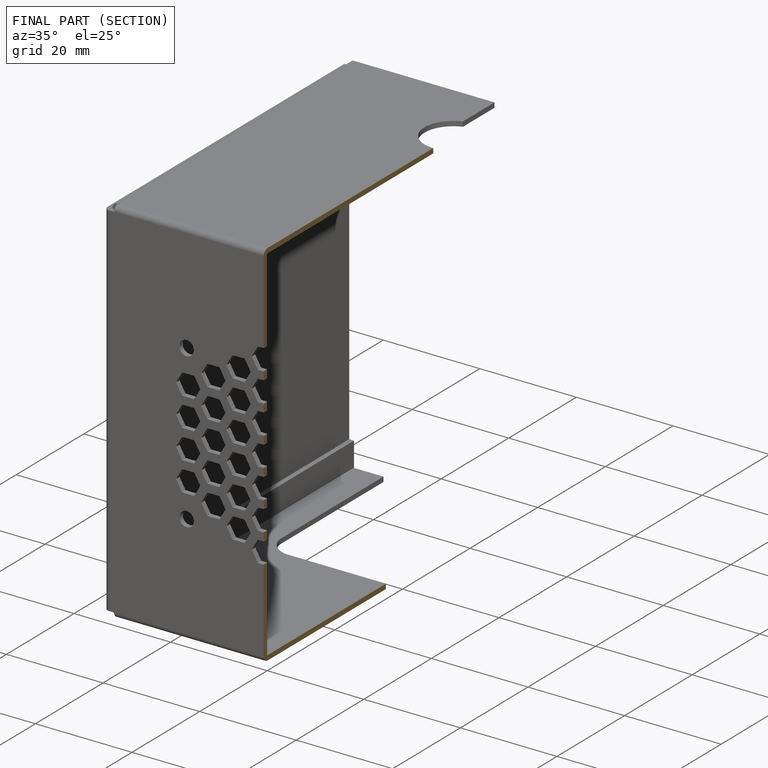
[diagram: finished part — half-section view (interior)]
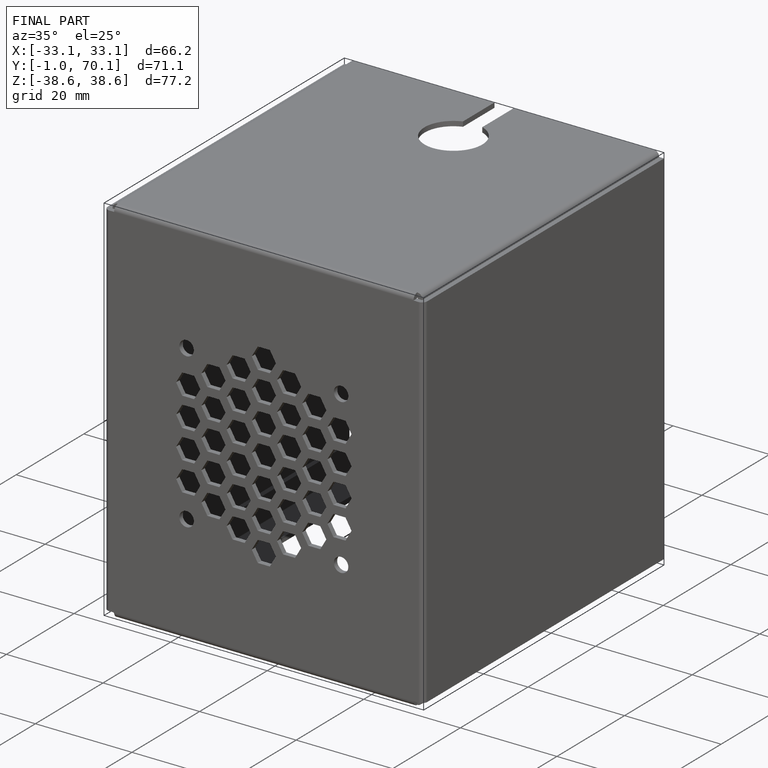
[diagram: finished part — iso view with bounding-box wireframe]
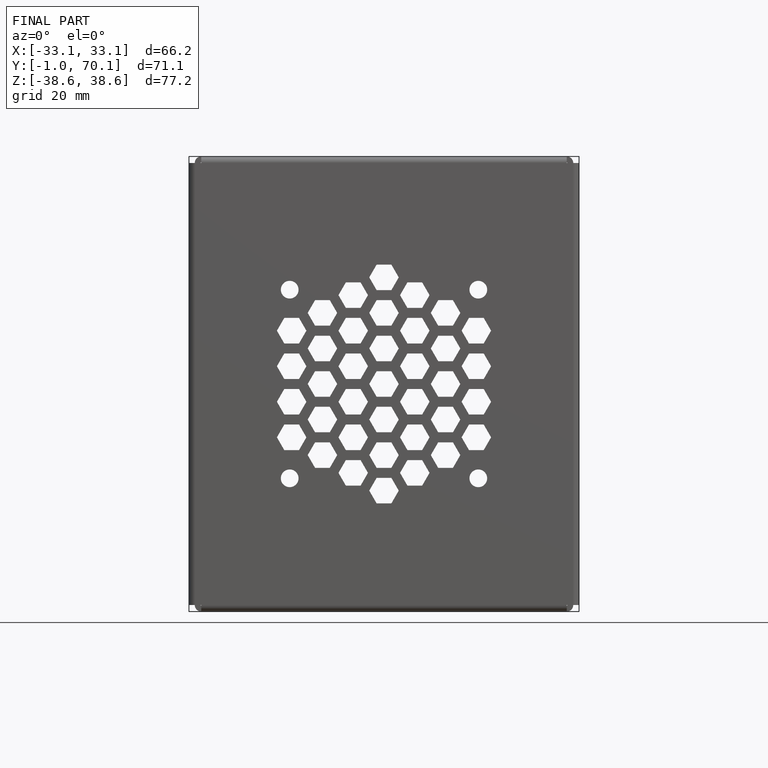
[diagram: finished part — front view with bounding-box wireframe]
